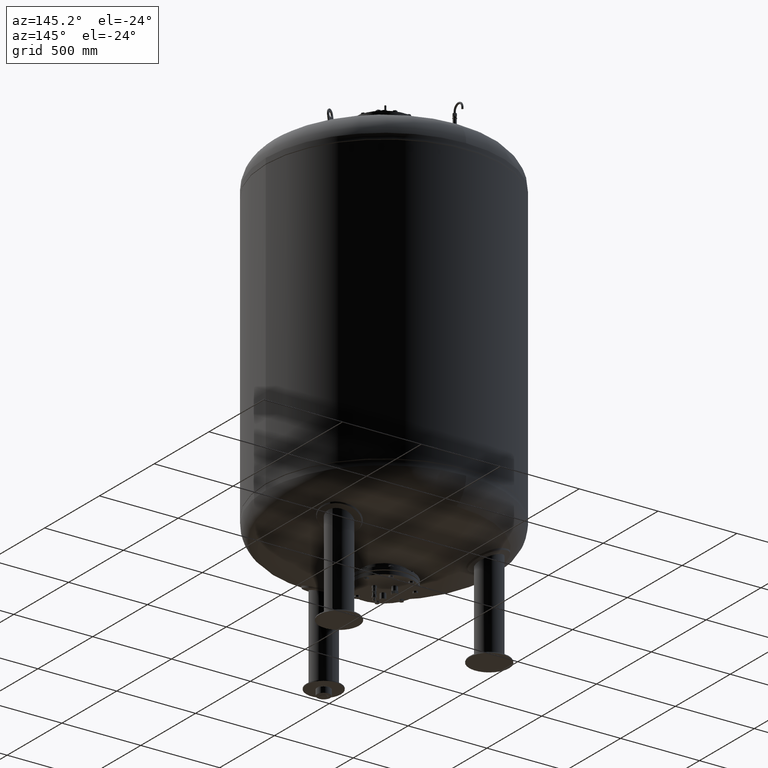
[diagram: clean part render]
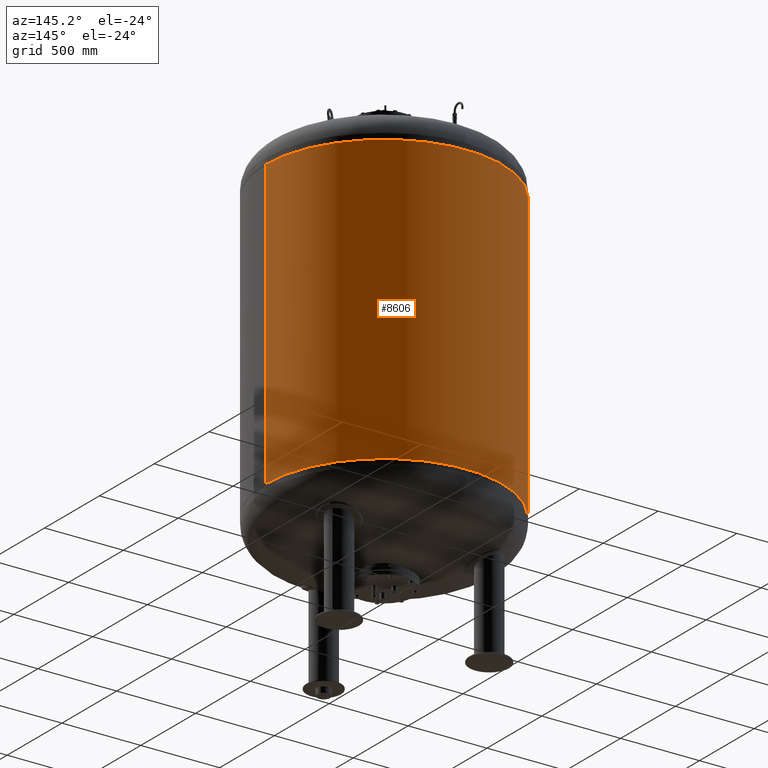
[diagram: same view with one face highlighted and labeled with its STEP entity id]
A machine part, auxiliary view. The second image highlights one B-rep face of the part: STEP entity #8606.
In plain terms, the highlighted cylindrical surface (partial cylindrical patch) has radius 750 mm, axis along (0, 0, 1).
Its self-contained STEP definition (entity closure, byte-faithful):
#8486=CARTESIAN_POINT('',(750.000000000000910,0.0,2642.0));
#8487=VERTEX_POINT('',#8486);
#8488=CARTESIAN_POINT('',(749.999999999999890,0.0,823.0));
#8489=VERTEX_POINT('',#8488);
#8490=CARTESIAN_POINT('',(750.000000000000910,0.0,2642.0));
#8491=DIRECTION('',(0.0,0.0,-1.0));
#8492=VECTOR('',#8491,1819.0);
#8493=LINE('',#8490,#8492);
#8494=EDGE_CURVE('',#8487,#8489,#8493,.T.);
#8496=CARTESIAN_POINT('',(-750.000000000000570,-9.184548E-014,2642.0));
#8497=VERTEX_POINT('',#8496);
#8505=CARTESIAN_POINT('',(-749.999999999999890,-9.184548E-014,823.000000000000110));
#8506=VERTEX_POINT('',#8505);
#8507=CARTESIAN_POINT('',(-750.000000000000570,-9.184548E-014,2642.0));
#8508=DIRECTION('',(0.0,0.0,-1.0));
#8509=VECTOR('',#8508,1819.0);
#8510=LINE('',#8507,#8509);
#8511=EDGE_CURVE('',#8497,#8506,#8510,.T.);
#8579=CARTESIAN_POINT('',(-1.663310E-014,0.0,823.000000000000110));
#8580=DIRECTION('',(0.0,0.0,1.0));
#8581=DIRECTION('',(1.0,0.0,0.0));
#8582=AXIS2_PLACEMENT_3D('',#8579,#8580,#8581);
#8583=CIRCLE('',#8582,749.999999999999890);
#8584=EDGE_CURVE('',#8489,#8506,#8583,.T.);
#8589=CARTESIAN_POINT('',(8.316550E-015,0.0,2187.250000000000000));
#8590=DIRECTION('',(1.828818E-017,0.0,1.0));
#8591=DIRECTION('',(1.0,0.0,0.0));
#8592=AXIS2_PLACEMENT_3D('',#8589,#8590,#8591);
#8593=CYLINDRICAL_SURFACE('',#8592,750.000000000000570);
#8594=ORIENTED_EDGE('',*,*,#8494,.T.);
#8595=ORIENTED_EDGE('',*,*,#8584,.T.);
#8596=ORIENTED_EDGE('',*,*,#8511,.F.);
#8597=CARTESIAN_POINT('',(1.663310E-014,0.0,2642.0));
#8598=DIRECTION('',(0.0,0.0,1.0));
#8599=DIRECTION('',(1.0,0.0,0.0));
#8600=AXIS2_PLACEMENT_3D('',#8597,#8598,#8599);
#8601=CIRCLE('',#8600,750.000000000000910);
#8602=EDGE_CURVE('',#8487,#8497,#8601,.T.);
#8603=ORIENTED_EDGE('',*,*,#8602,.F.);
#8604=EDGE_LOOP('',(#8594,#8595,#8596,#8603));
#8605=FACE_OUTER_BOUND('',#8604,.T.);
#8606=ADVANCED_FACE('',(#8605),#8593,.T.);